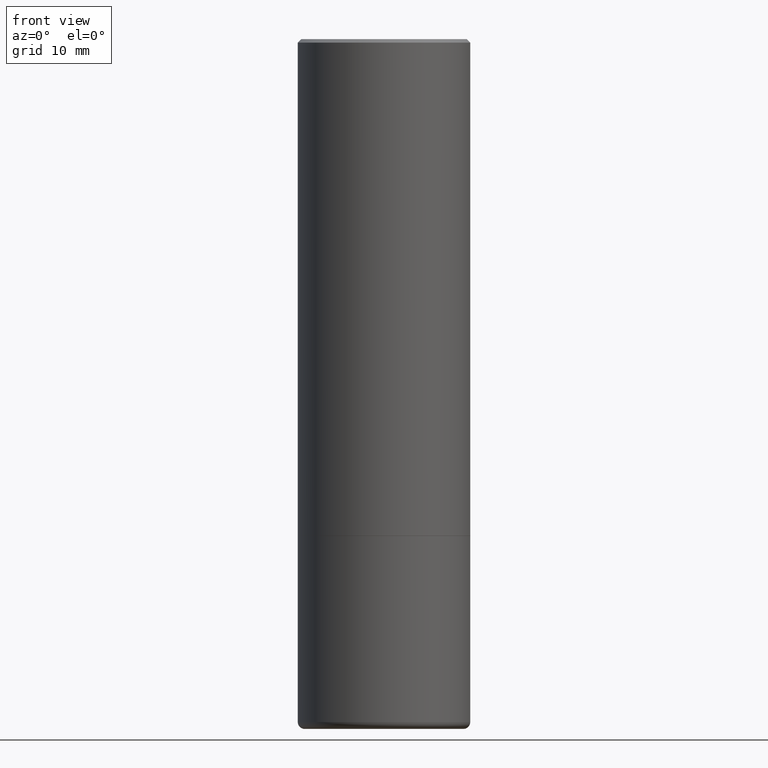
[diagram: clean part render]
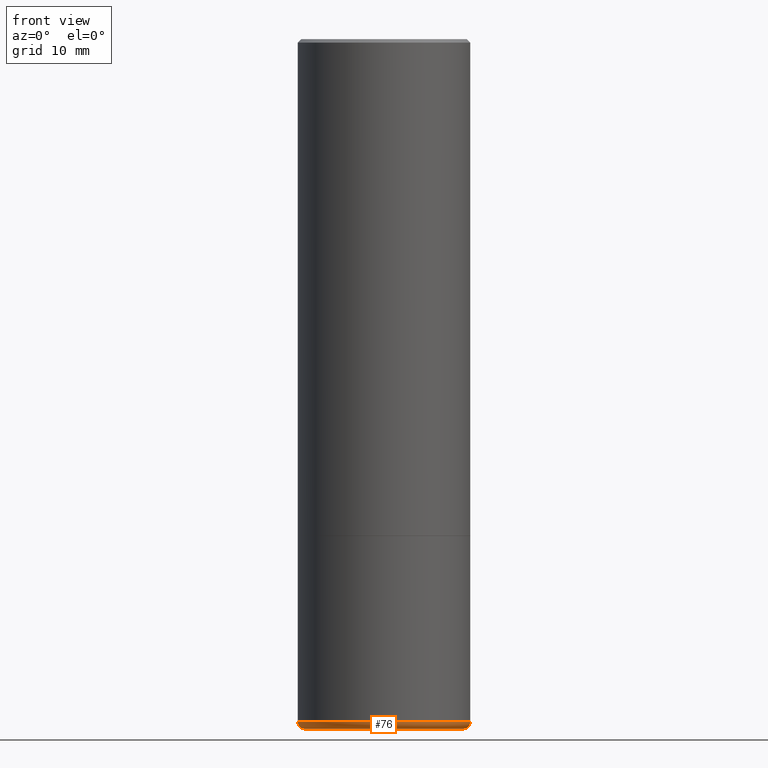
[diagram: same view with one face highlighted and labeled with its STEP entity id]
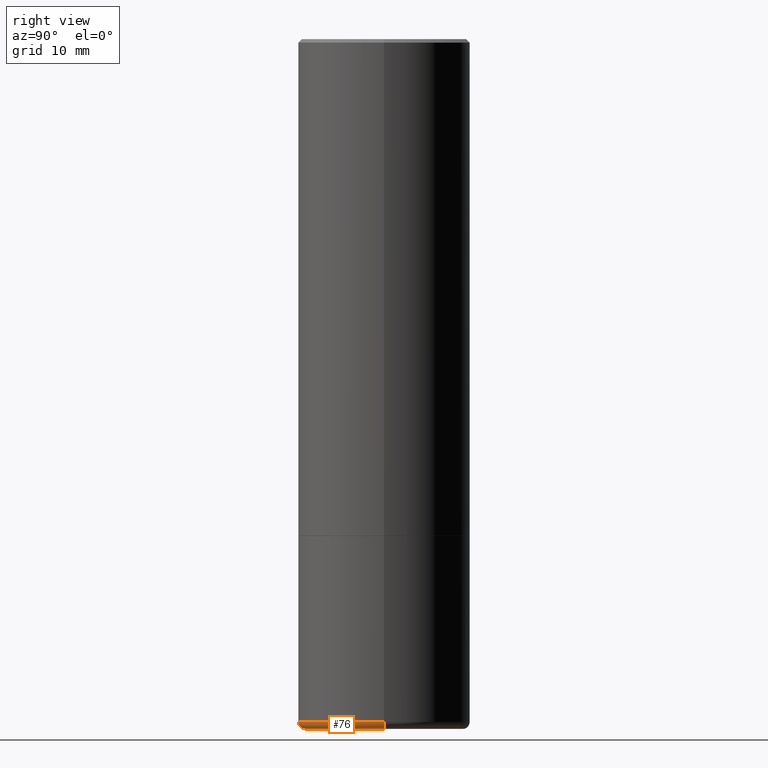
[diagram: same view with one face highlighted and labeled with its STEP entity id]
A machine part, front view. The second image highlights one B-rep face of the part: STEP entity #76.
A second angle (right view) of the same face is appended — the face is thin or edge-on in the first view.
In plain terms, the highlighted toroidal blend (fillet) surface has major radius 11.4998 mm and minor (blend) radius 1.0008 mm.
Its self-contained STEP definition (entity closure, byte-faithful):
#38 = FACE_OUTER_BOUND ( 'NONE', #182, .T. ) ;
#41 = VERTEX_POINT ( 'NONE', #136 ) ;
#44 = VERTEX_POINT ( 'NONE', #228 ) ;
#48 = CARTESIAN_POINT ( 'NONE',  ( 9.531459218987189074E-29, -1.360839766627504420E-14, -3.897600000000000176 ) ) ;
#51 = CIRCLE ( 'NONE', #79, 0.03939999999999978936 ) ;
#53 = ORIENTED_EDGE ( 'NONE', *, *, #258, .T. ) ;
#69 = EDGE_CURVE ( 'NONE', #44, #393, #218, .T. ) ;
#76 = ADVANCED_FACE ( 'NONE', ( #38 ), #340, .T. ) ;
#78 = DIRECTION ( 'NONE',  ( -2.445468806185136597E-29, 3.491481338843145583E-15, 1.000000000000000000 ) ) ;
#79 = AXIS2_PLACEMENT_3D ( 'NONE', #308, #245, #405 ) ;
#83 = DIRECTION ( 'NONE',  ( -2.445468806185136597E-29, 3.491481338843145583E-15, 1.000000000000000000 ) ) ;
#113 = ORIENTED_EDGE ( 'NONE', *, *, #304, .F. ) ;
#121 = VERTEX_POINT ( 'NONE', #141 ) ;
#136 = CARTESIAN_POINT ( 'NONE',  ( 0.4921499999999998098, -1.704506274809833840E-14, -3.897600000000000176 ) ) ;
#141 = CARTESIAN_POINT ( 'NONE',  ( 0.4527499999999999858, -1.690749838334791918E-14, -3.936999999999999389 ) ) ;
#150 = DIRECTION ( 'NONE',  ( 1.000000000000000000, -6.982962677686265133E-15, 4.883557194083112340E-29 ) ) ;
#153 = CIRCLE ( 'NONE', #389, 0.4921499999999999764 ) ;
#173 = CARTESIAN_POINT ( 'NONE',  ( -0.4527499999999999858, -1.039141543012119071E-14, -3.897600000000000176 ) ) ;
#182 = EDGE_LOOP ( 'NONE', ( #383, #53, #313, #113 ) ) ;
#199 = DIRECTION ( 'NONE',  ( 7.105427357601001859E-15, 1.000000000000000000, -3.491481338843145583E-15 ) ) ;
#201 = EDGE_CURVE ( 'NONE', #121, #41, #51, .T. ) ;
#213 = DIRECTION ( 'NONE',  ( 1.000000000000000000, -6.982962677686265133E-15, 0.000000000000000000 ) ) ;
#218 = CIRCLE ( 'NONE', #387, 0.03939999999999978936 ) ;
#219 = CARTESIAN_POINT ( 'NONE',  ( -0.4921499999999998098, -1.011146159223171209E-14, -3.897600000000000176 ) ) ;
#224 = AXIS2_PLACEMENT_3D ( 'NONE', #374, #78, #213 ) ;
#228 = CARTESIAN_POINT ( 'NONE',  ( -0.4527499999999999858, -1.032022069355166022E-14, -3.936999999999999389 ) ) ;
#245 = DIRECTION ( 'NONE',  ( -6.982962677686266711E-15, -1.000000000000000000, 3.491481338843145583E-15 ) ) ;
#252 = DIRECTION ( 'NONE',  ( 1.000000000000000000, -6.982962677686265922E-15, 0.000000000000000000 ) ) ;
#258 = EDGE_CURVE ( 'NONE', #44, #121, #398, .T. ) ;
#270 = AXIS2_PLACEMENT_3D ( 'NONE', #48, #342, #150 ) ;
#283 = CARTESIAN_POINT ( 'NONE',  ( 9.531459218987189074E-29, -1.360839766627504420E-14, -3.897600000000000176 ) ) ;
#304 = EDGE_CURVE ( 'NONE', #393, #41, #153, .T. ) ;
#308 = CARTESIAN_POINT ( 'NONE',  ( 0.4527499999999999858, -1.676993401859749997E-14, -3.897600000000000176 ) ) ;
#313 = ORIENTED_EDGE ( 'NONE', *, *, #201, .T. ) ;
#326 = DIRECTION ( 'NONE',  ( -1.000000000000000000, 7.105427357601014480E-15, 0.000000000000000000 ) ) ;
#340 = TOROIDAL_SURFACE ( 'NONE', #270, 0.4527499999999999858, 0.03939999999999978936 ) ;
#342 = DIRECTION ( 'NONE',  ( -2.445468806185136597E-29, 3.491481338843145583E-15, 1.000000000000000000 ) ) ;
#374 = CARTESIAN_POINT ( 'NONE',  ( 9.627810689950881427E-29, -1.374596203102546184E-14, -3.936999999999999389 ) ) ;
#383 = ORIENTED_EDGE ( 'NONE', *, *, #69, .F. ) ;
#387 = AXIS2_PLACEMENT_3D ( 'NONE', #173, #199, #326 ) ;
#389 = AXIS2_PLACEMENT_3D ( 'NONE', #283, #83, #252 ) ;
#393 = VERTEX_POINT ( 'NONE', #219 ) ;
#398 = CIRCLE ( 'NONE', #224, 0.4527499999999999858 ) ;
#405 = DIRECTION ( 'NONE',  ( 1.000000000000000000, -6.982962677686266711E-15, 0.000000000000000000 ) ) ;